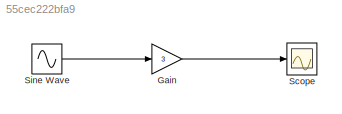
MODEL slx_55cec222bfa9
KIND model
CONFIG AbsTol = auto
CONFIG FixedStep = 0.1
CONFIG MaxStep = auto
CONFIG MinStep = auto
CONFIG RelTol = 1e-3
CONFIG SampleTimeConstraint = Unconstrained
CONFIG Solver = FixedStepDiscrete
CONFIG SolverMode = Auto
CONFIG SolverName = FixedStepDiscrete
CONFIG StartFcn = open_scope
CONFIG StartTime = 0.0
CONFIG StopTime = 100
BLOCK [Gain] Gain
  Gain = 3
  OutDataTypeStr = Inherit: Inherit via internal rule
  ParamDataTypeStr = Inherit: Inherit via internal rule
  SaturateOnIntegerOverflow = off
BLOCK [Scope] Scope
  Ports = [1]
  ScopeSpecificationString = Simulink.scopes.TimeScopeBlockCfg('CurrentConfiguration', extmgr.ConfigurationSet(extmgr.Configuration('Core','General UI',true),extmgr.Configuration('Core','Source UI',true),extmgr.Configuration('Sources','WiredSimulink',true),extmgr.Configuration('Visuals','Time Domain',true,'SerializedDisplays',{struct('MinYLimReal','-3.74996','MaxYLimReal','3.74998','YLabelReal','','MinYLimMag','0.00000','MaxY...<+1353ch>
BLOCK [Sin] Sine Wave
  Ports = [0, 1]
  SampleTime = 0
LINE Gain:1 -> Scope:1
LINE Sine Wave:1 -> Gain:1
